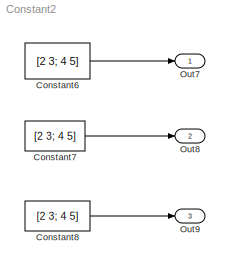
MODEL Constant2
KIND model
BLOCK [Constant] Constant6
  OutDataTypeStr = double
  SID = 13
  Value = [2 3; 4 5]
BLOCK [Constant] Constant7
  OutDataTypeStr = int8
  SID = 14
  Value = [2 3; 4 5]
BLOCK [Constant] Constant8
  OutDataTypeStr = boolean
  SID = 15
  Value = [2 3; 4 5]
BLOCK [Outport] Out7
  IconDisplay = Port number
  SID = 31
BLOCK [Outport] Out8
  IconDisplay = Port number
  Port = 2
  SID = 32
BLOCK [Outport] Out9
  IconDisplay = Port number
  Port = 3
  SID = 33
LINE Constant6:1 -> Out7:1
LINE Constant7:1 -> Out8:1
LINE Constant8:1 -> Out9:1
